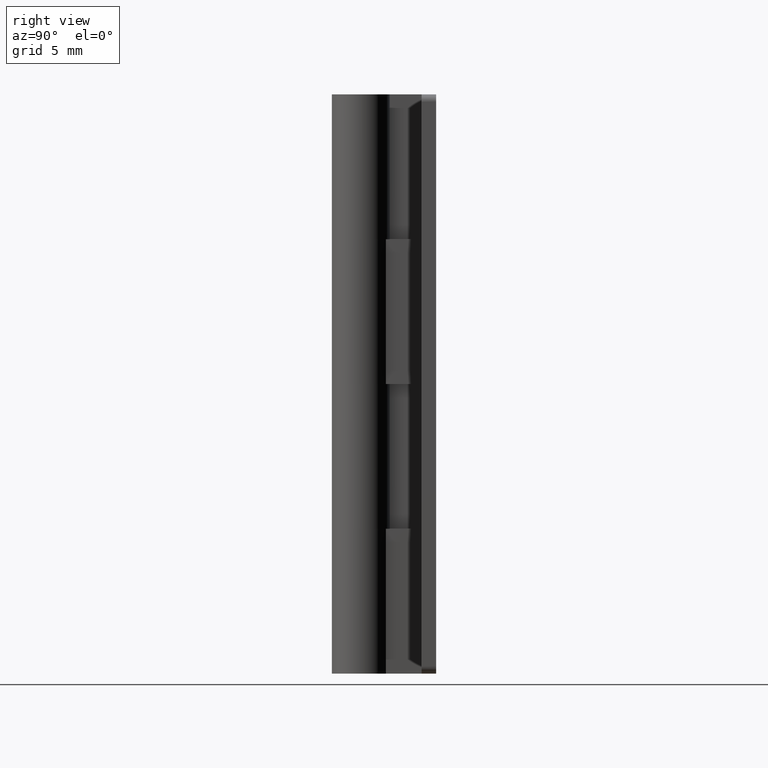
[diagram: clean part render]
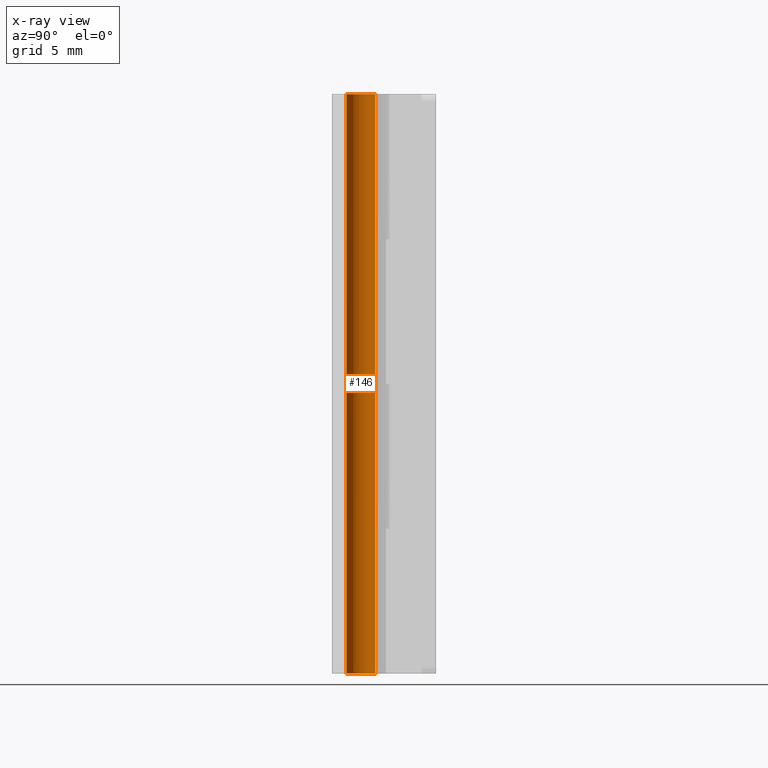
[diagram: x-ray — body ghosted, one internal face saturated and labeled with its STEP entity id]
A machine part, right view, then the same camera in x-ray: the body is ghosted and one INTERNAL B-rep face — a face not visible from any outside direction — is saturated and labeled: STEP entity #146.
In plain terms, the highlighted face is a freeform B-spline surface patch.
Its self-contained STEP definition (entity closure, byte-faithful):
#44=CARTESIAN_POINT('',(0.118034234656758,-0.993009526363666,41.000008200000053));
#45=CARTESIAN_POINT('',(0.089614728637978,-0.996387615448606,41.000008200000053));
#46=CARTESIAN_POINT('',(0.061048539534857,-0.998134798421867,41.000008200000053));
#47=CARTESIAN_POINT('',(-0.937086258887010,-1.059183337956724,41.000008200000046));
#48=CARTESIAN_POINT('',(-0.998134798421867,-0.061048539534857,41.000008200000053));
#49=CARTESIAN_POINT('',(-1.059183337956724,0.937086258887010,41.000008200000046));
#50=CARTESIAN_POINT('',(-0.061048539534857,0.998134798421867,41.000008200000053));
#51=CARTESIAN_POINT('',(0.118034234656758,-0.993009526363666,-1.025000205000005));
#52=CARTESIAN_POINT('',(0.089614728637978,-0.996387615448606,-1.025000205000005));
#53=CARTESIAN_POINT('',(0.061048539534857,-0.998134798421867,-1.025000205000005));
#54=CARTESIAN_POINT('',(-0.937086258887010,-1.059183337956724,-1.025000205000005));
#55=CARTESIAN_POINT('',(-0.998134798421867,-0.061048539534857,-1.025000205000005));
#56=CARTESIAN_POINT('',(-1.059183337956724,0.937086258887010,-1.025000205000005));
#57=CARTESIAN_POINT('',(-0.061048539534857,0.998134798421867,-1.025000205000005));
#65=(BOUNDED_SURFACE()B_SPLINE_SURFACE(2,1,((#44,#51),(#45,#52),(#46,#53),(#47,#54),(#48,#55),(#49,#56),(#50,#57)),.UNSPECIFIED.,.F.,.F.,.U.)B_SPLINE_SURFACE_WITH_KNOTS((3,2,2,3),(2,2),(3.078760800517997,3.141592653589793,4.712388980384690,6.283185307179586),(0.0,42.025008405000058),.UNSPECIFIED.)GEOMETRIC_REPRESENTATION_ITEM()RATIONAL_B_SPLINE_SURFACE(((0.977505800795127,0.977505800795127),(0.988284271247462,0.988284271247462),(1.0,1.0),(0.707106781186548,0.707106781186548),(1.0,1.0),(0.707106781186548,0.707106781186548),(1.0,1.0)))REPRESENTATION_ITEM('')SURFACE());
#66=CARTESIAN_POINT('',(0.118034234704169,-0.993009526358031,1.135771E-015));
#67=VERTEX_POINT('',#66);
#68=CARTESIAN_POINT('',(-1.0,0.0,0.0));
#69=VERTEX_POINT('',#68);
#70=CARTESIAN_POINT('',(0.118034234704169,-0.993009526358031,1.135771E-015));
#71=CARTESIAN_POINT('',(0.059224119699822,-1.0,0.0));
#72=CARTESIAN_POINT('',(0.0,-1.0,0.0));
#73=CARTESIAN_POINT('',(-1.0,-1.0,0.0));
#74=CARTESIAN_POINT('',(-1.0,0.0,0.0));
#82=(BOUNDED_CURVE()B_SPLINE_CURVE(2,(#70,#71,#72,#73,#74),.UNSPECIFIED.,.F.,.U.)B_SPLINE_CURVE_WITH_KNOTS((3,2,3),(0.229562473499506,0.250000000000000,0.500000000000000),.UNSPECIFIED.)CURVE()GEOMETRIC_REPRESENTATION_ITEM()RATIONAL_B_SPLINE_CURVE((0.956026754156255,0.976055948314741,1.0,0.707106781186548,1.0))REPRESENTATION_ITEM(''));
#83=EDGE_CURVE('',#67,#69,#82,.T.);
#84=ORIENTED_EDGE('',*,*,#83,.F.);
#85=CARTESIAN_POINT('',(0.118034234704169,-0.993009526358031,40.000008000000037));
#86=VERTEX_POINT('',#85);
#87=CARTESIAN_POINT('',(0.118034234704169,-0.993009526358031,40.000008000000037));
#88=CARTESIAN_POINT('',(0.118034234704169,-0.993009526358031,1.135771E-015));
#89=QUASI_UNIFORM_CURVE('',1,(#87,#88),.UNSPECIFIED.,.F.,.U.);
#90=EDGE_CURVE('',#86,#67,#89,.T.);
#91=ORIENTED_EDGE('',*,*,#90,.F.);
#92=CARTESIAN_POINT('',(-1.0,0.0,40.000008000000037));
#93=VERTEX_POINT('',#92);
#94=CARTESIAN_POINT('',(0.118034234704169,-0.993009526358031,40.000008000000044));
#95=CARTESIAN_POINT('',(0.059224119699822,-1.0,40.000008000000051));
#96=CARTESIAN_POINT('',(0.0,-1.0,40.000008000000037));
#97=CARTESIAN_POINT('',(-1.0,-1.0,40.000008000000037));
#98=CARTESIAN_POINT('',(-1.0,0.0,40.000008000000037));
#106=(BOUNDED_CURVE()B_SPLINE_CURVE(2,(#94,#95,#96,#97,#98),.UNSPECIFIED.,.F.,.U.)B_SPLINE_CURVE_WITH_KNOTS((3,2,3),(0.229562473499506,0.250000000000000,0.500000000000000),.UNSPECIFIED.)CURVE()GEOMETRIC_REPRESENTATION_ITEM()RATIONAL_B_SPLINE_CURVE((0.956026754156255,0.976055948314741,1.0,0.707106781186548,1.0))REPRESENTATION_ITEM(''));
#107=EDGE_CURVE('',#86,#93,#106,.T.);
#108=ORIENTED_EDGE('',*,*,#107,.T.);
#109=CARTESIAN_POINT('',(-0.061048539758834,0.998134798408168,40.000008000000037));
#110=VERTEX_POINT('',#109);
#111=CARTESIAN_POINT('',(-1.0,0.0,40.000008000000037));
#112=CARTESIAN_POINT('',(-1.0,0.940706066482728,40.000008000000044));
#113=CARTESIAN_POINT('',(-0.061048539758834,0.998134798408168,40.000008000000030));
#121=(BOUNDED_CURVE()B_SPLINE_CURVE(2,(#111,#112,#113),.UNSPECIFIED.,.F.,.U.)B_SPLINE_CURVE_WITH_KNOTS((3,3),(0.500000000000000,0.739332962164531),.UNSPECIFIED.)CURVE()GEOMETRIC_REPRESENTATION_ITEM()RATIONAL_B_SPLINE_CURVE((1.0,0.719603993373889,0.976072041507239))REPRESENTATION_ITEM(''));
#122=EDGE_CURVE('',#93,#110,#121,.T.);
#123=ORIENTED_EDGE('',*,*,#122,.T.);
#124=CARTESIAN_POINT('',(-0.061048539758834,0.998134798408168,1.110223E-015));
#125=VERTEX_POINT('',#124);
#126=CARTESIAN_POINT('',(-0.061048539758834,0.998134798408168,40.000008000000037));
#127=CARTESIAN_POINT('',(-0.061048539758834,0.998134798408168,1.110223E-015));
#128=QUASI_UNIFORM_CURVE('',1,(#126,#127),.UNSPECIFIED.,.F.,.U.);
#129=EDGE_CURVE('',#110,#125,#128,.T.);
#130=ORIENTED_EDGE('',*,*,#129,.T.);
#131=CARTESIAN_POINT('',(-1.0,0.0,0.0));
#132=CARTESIAN_POINT('',(-1.0,0.940706066482728,0.0));
#133=CARTESIAN_POINT('',(-0.061048539758834,0.998134798408168,1.110223E-015));
#141=(BOUNDED_CURVE()B_SPLINE_CURVE(2,(#131,#132,#133),.UNSPECIFIED.,.F.,.U.)B_SPLINE_CURVE_WITH_KNOTS((3,3),(0.500000000000000,0.739332962164531),.UNSPECIFIED.)CURVE()GEOMETRIC_REPRESENTATION_ITEM()RATIONAL_B_SPLINE_CURVE((1.0,0.719603993373889,0.976072041507239))REPRESENTATION_ITEM(''));
#142=EDGE_CURVE('',#69,#125,#141,.T.);
#143=ORIENTED_EDGE('',*,*,#142,.F.);
#144=EDGE_LOOP('',(#84,#91,#108,#123,#130,#143));
#145=FACE_OUTER_BOUND('',#144,.T.);
#146=ADVANCED_FACE('',(#145),#65,.T.);